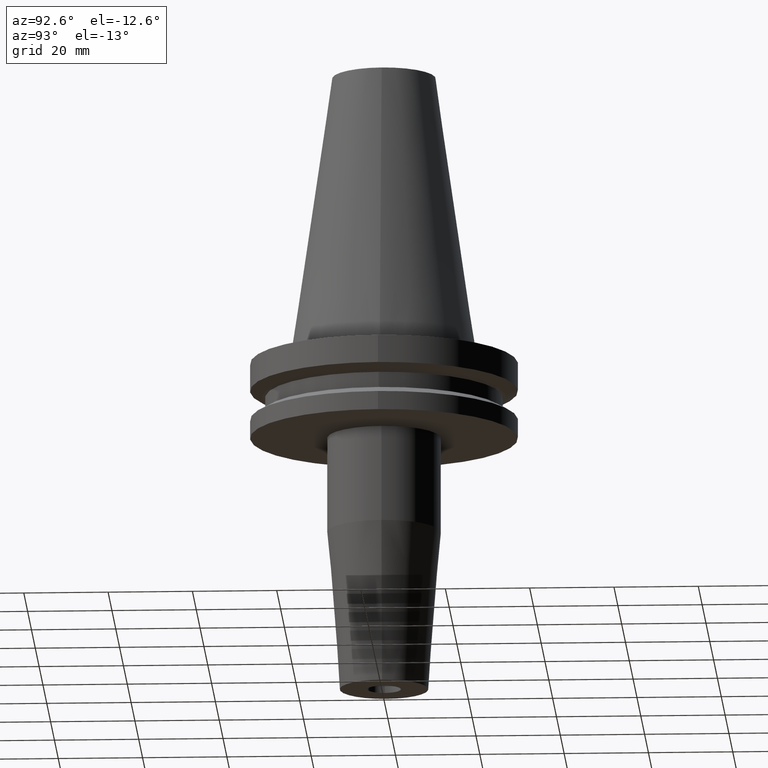
[diagram: clean part render]
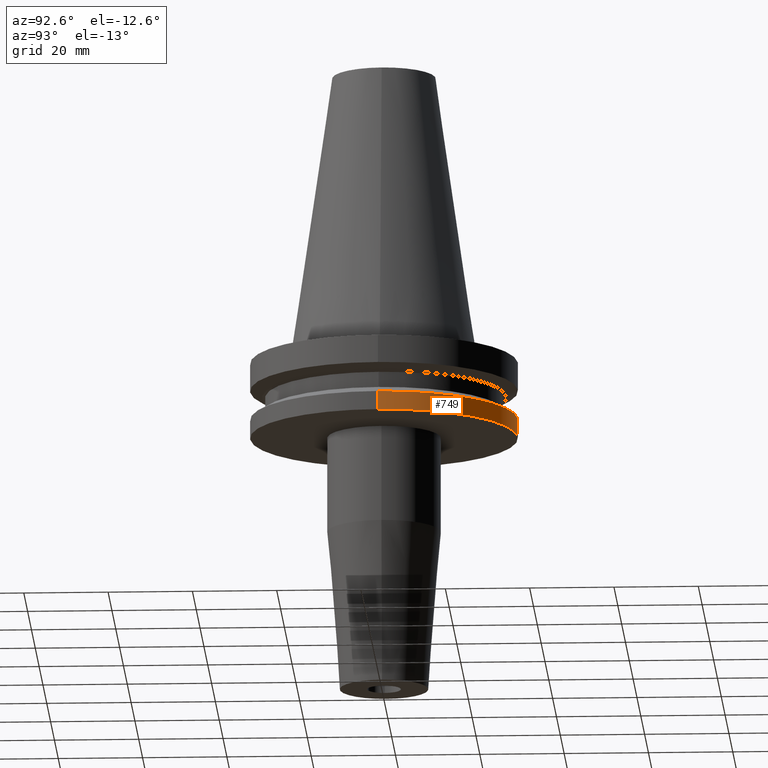
[diagram: same view with one face highlighted and labeled with its STEP entity id]
A machine part, auxiliary view. The second image highlights one B-rep face of the part: STEP entity #749.
In plain terms, the highlighted cylindrical surface (partial cylindrical patch) has radius 31.75 mm, axis along (-0, -0, 1).
Its self-contained STEP definition (entity closure, byte-faithful):
#22 = EDGE_LOOP ( 'NONE', ( #83, #595, #382, #346 ) ) ;
#23 = CIRCLE ( 'NONE', #214, 31.75000000000000000 ) ;
#39 = CYLINDRICAL_SURFACE ( 'NONE', #313, 31.75000000000000000 ) ;
#49 = CARTESIAN_POINT ( 'NONE',  ( 0.000000000000000000, 0.000000000000000000, 68.25000000000000000 ) ) ;
#72 = VECTOR ( 'NONE', #172, 1000.000000000000000 ) ;
#83 = ORIENTED_EDGE ( 'NONE', *, *, #487, .T. ) ;
#84 = CARTESIAN_POINT ( 'NONE',  ( -31.74999999999999289, 3.888253587292845687E-15, -19.04999999999999716 ) ) ;
#125 = VERTEX_POINT ( 'NONE', #84 ) ;
#172 = DIRECTION ( 'NONE',  ( -0.000000000000000000, -0.000000000000000000, 1.000000000000000000 ) ) ;
#201 = CARTESIAN_POINT ( 'NONE',  ( 31.74999999999999289, 0.000000000000000000, -19.04999999999999716 ) ) ;
#214 = AXIS2_PLACEMENT_3D ( 'NONE', #436, #498, #561 ) ;
#248 = VECTOR ( 'NONE', #582, 1000.000000000000000 ) ;
#260 = EDGE_CURVE ( 'NONE', #125, #272, #680, .T. ) ;
#272 = VERTEX_POINT ( 'NONE', #500 ) ;
#280 = VERTEX_POINT ( 'NONE', #201 ) ;
#297 = DIRECTION ( 'NONE',  ( -0.000000000000000000, -0.000000000000000000, 1.000000000000000000 ) ) ;
#313 = AXIS2_PLACEMENT_3D ( 'NONE', #49, #461, #335 ) ;
#335 = DIRECTION ( 'NONE',  ( 1.000000000000000000, 0.000000000000000000, 0.000000000000000000 ) ) ;
#346 = ORIENTED_EDGE ( 'NONE', *, *, #397, .F. ) ;
#382 = ORIENTED_EDGE ( 'NONE', *, *, #607, .F. ) ;
#397 = EDGE_CURVE ( 'NONE', #280, #700, #599, .T. ) ;
#417 = AXIS2_PLACEMENT_3D ( 'NONE', #710, #297, #537 ) ;
#419 = CARTESIAN_POINT ( 'NONE',  ( 31.75000000000000000, 0.000000000000000000, 68.25000000000000000 ) ) ;
#436 = CARTESIAN_POINT ( 'NONE',  ( 0.000000000000000000, 0.000000000000000000, -14.65472339340266572 ) ) ;
#451 = CARTESIAN_POINT ( 'NONE',  ( 31.75000000000000000, 0.000000000000000000, -14.65472339340266572 ) ) ;
#461 = DIRECTION ( 'NONE',  ( -0.000000000000000000, -0.000000000000000000, 1.000000000000000000 ) ) ;
#462 = CARTESIAN_POINT ( 'NONE',  ( -31.75000000000000000, 3.888253587292846476E-15, 68.25000000000000000 ) ) ;
#487 = EDGE_CURVE ( 'NONE', #280, #125, #767, .T. ) ;
#498 = DIRECTION ( 'NONE',  ( -0.000000000000000000, -0.000000000000000000, 1.000000000000000000 ) ) ;
#500 = CARTESIAN_POINT ( 'NONE',  ( -31.75000000000000000, 3.888253587292846476E-15, -14.65472339340266572 ) ) ;
#537 = DIRECTION ( 'NONE',  ( 1.000000000000000000, 0.000000000000000000, 0.000000000000000000 ) ) ;
#561 = DIRECTION ( 'NONE',  ( 1.000000000000000000, 0.000000000000000000, 0.000000000000000000 ) ) ;
#582 = DIRECTION ( 'NONE',  ( -0.000000000000000000, -0.000000000000000000, 1.000000000000000000 ) ) ;
#595 = ORIENTED_EDGE ( 'NONE', *, *, #260, .T. ) ;
#599 = LINE ( 'NONE', #419, #72 ) ;
#607 = EDGE_CURVE ( 'NONE', #700, #272, #23, .T. ) ;
#680 = LINE ( 'NONE', #462, #248 ) ;
#700 = VERTEX_POINT ( 'NONE', #451 ) ;
#710 = CARTESIAN_POINT ( 'NONE',  ( 0.000000000000000000, 0.000000000000000000, -19.04999999999999716 ) ) ;
#749 = ADVANCED_FACE ( 'NONE', ( #753 ), #39, .T. ) ;
#753 = FACE_OUTER_BOUND ( 'NONE', #22, .T. ) ;
#767 = CIRCLE ( 'NONE', #417, 31.74999999999999289 ) ;